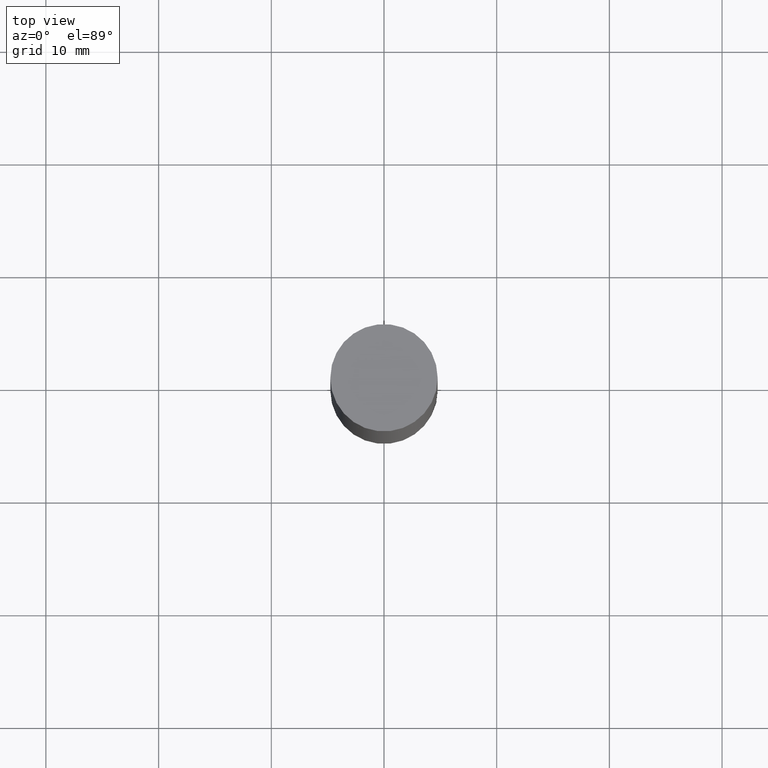
[diagram: clean part render]
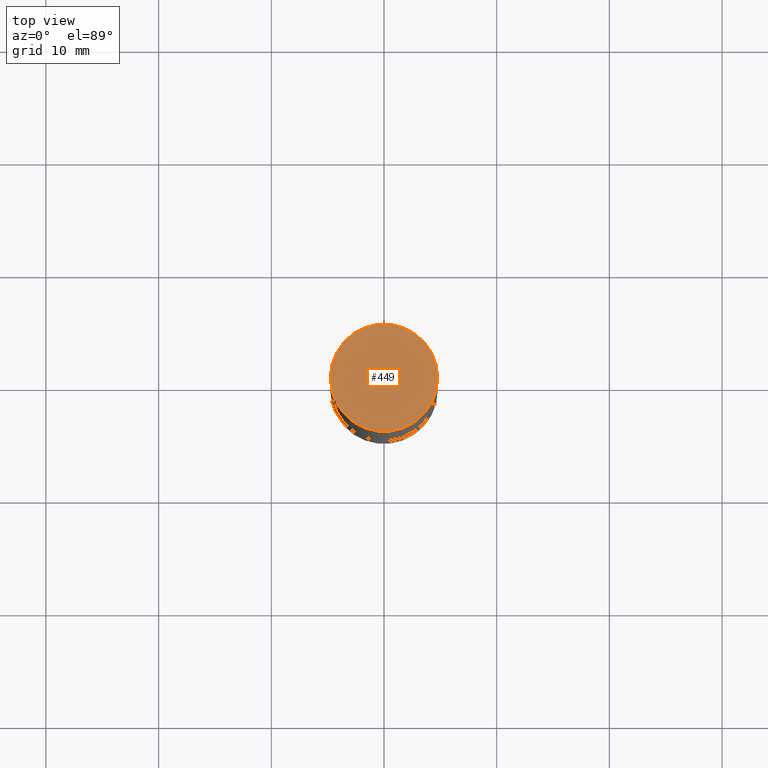
[diagram: same view with one face highlighted and labeled with its STEP entity id]
A machine part, top view. The second image highlights one B-rep face of the part: STEP entity #449.
In plain terms, the highlighted planar face has unit normal (0, 0, 1).
Its self-contained STEP definition (entity closure, byte-faithful):
#25 = DIRECTION ( 'NONE',  ( 1.000000000000000000, -6.982962677686265922E-15, 0.000000000000000000 ) ) ;
#138 = CARTESIAN_POINT ( 'NONE',  ( -0.1875000000000000278, 3.066025098218802702E-16, 5.463695987328561936E-16 ) ) ;
#140 = CARTESIAN_POINT ( 'NONE',  ( 1.309305502066236145E-15, 0.1874999999999999722, 0.000000000000000000 ) ) ;
#143 = AXIS2_PLACEMENT_3D ( 'NONE', #488, #446, #25 ) ;
#146 = FACE_OUTER_BOUND ( 'NONE', #656, .T. ) ;
#194 = DIRECTION ( 'NONE',  ( -1.000000000000000000, 6.982962677686265922E-15, -9.839502134516470631E-33 ) ) ;
#212 = DIRECTION ( 'NONE',  ( 1.000000000000000000, -6.982962677686265922E-15, 0.000000000000000000 ) ) ;
#262 = VERTEX_POINT ( 'NONE', #331 ) ;
#323 = CIRCLE ( 'NONE', #659, 0.1875000000000000278 ) ;
#331 = CARTESIAN_POINT ( 'NONE',  ( 0.1875000000000000278, -1.307544161180414563E-15, 5.463695987328526437E-16 ) ) ;
#347 = EDGE_CURVE ( 'NONE', #262, #420, #493, .T. ) ;
#349 = ORIENTED_EDGE ( 'NONE', *, *, #347, .T. ) ;
#420 = VERTEX_POINT ( 'NONE', #138 ) ;
#443 = PLANE ( 'NONE',  #550 ) ;
#446 = DIRECTION ( 'NONE',  ( 2.445468806185136597E-29, 3.492890411551752677E-15, 1.000000000000000000 ) ) ;
#449 = ADVANCED_FACE ( 'NONE', ( #146 ), #443, .T. ) ;
#466 = CARTESIAN_POINT ( 'NONE',  ( 6.113672015462842613E-29, 1.761340885760521790E-18, 5.463695987328526437E-16 ) ) ;
#467 = ORIENTED_EDGE ( 'NONE', *, *, #578, .T. ) ;
#488 = CARTESIAN_POINT ( 'NONE',  ( 6.113672015462842613E-29, 1.761340885760521790E-18, 5.463695987328526437E-16 ) ) ;
#493 = CIRCLE ( 'NONE', #143, 0.1875000000000000278 ) ;
#513 = DIRECTION ( 'NONE',  ( 2.445468806185136597E-29, 3.492890411551752677E-15, 1.000000000000000000 ) ) ;
#550 = AXIS2_PLACEMENT_3D ( 'NONE', #140, #664, #194 ) ;
#578 = EDGE_CURVE ( 'NONE', #420, #262, #323, .T. ) ;
#656 = EDGE_LOOP ( 'NONE', ( #349, #467 ) ) ;
#659 = AXIS2_PLACEMENT_3D ( 'NONE', #466, #513, #212 ) ;
#664 = DIRECTION ( 'NONE',  ( 2.438088387897959769E-29, 3.492890411551753071E-15, 1.000000000000000000 ) ) ;